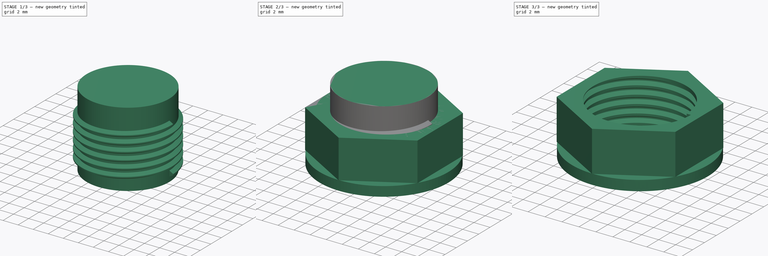
[diagram: build sequence overview — one tinted view per stage of 3, left to right]
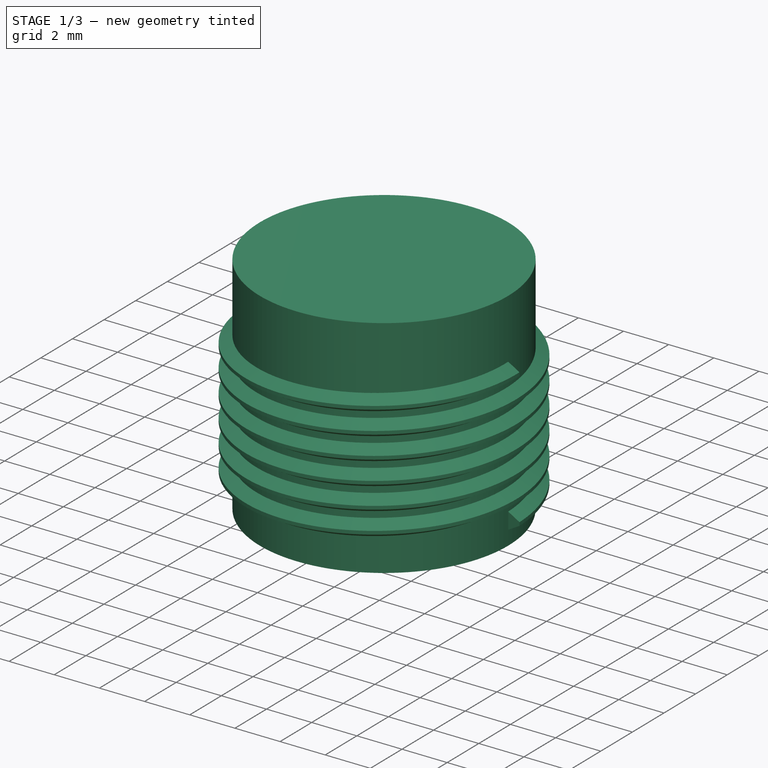
[diagram: stage 1 of 3 — iso view after this stage's code; geometry added in this stage tinted green]
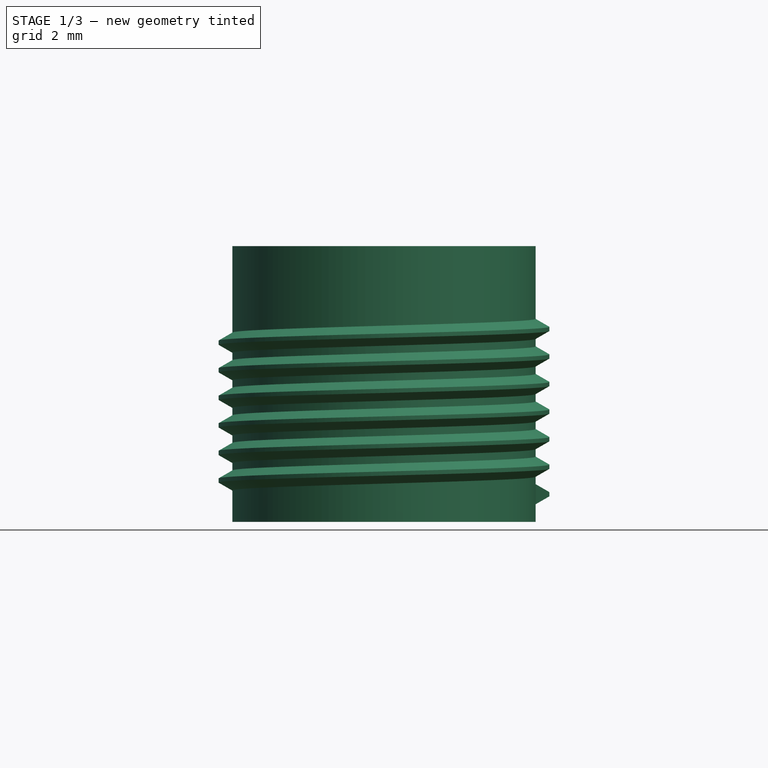
[diagram: stage 1 of 3 — front view after this stage's code; geometry added in this stage tinted green]
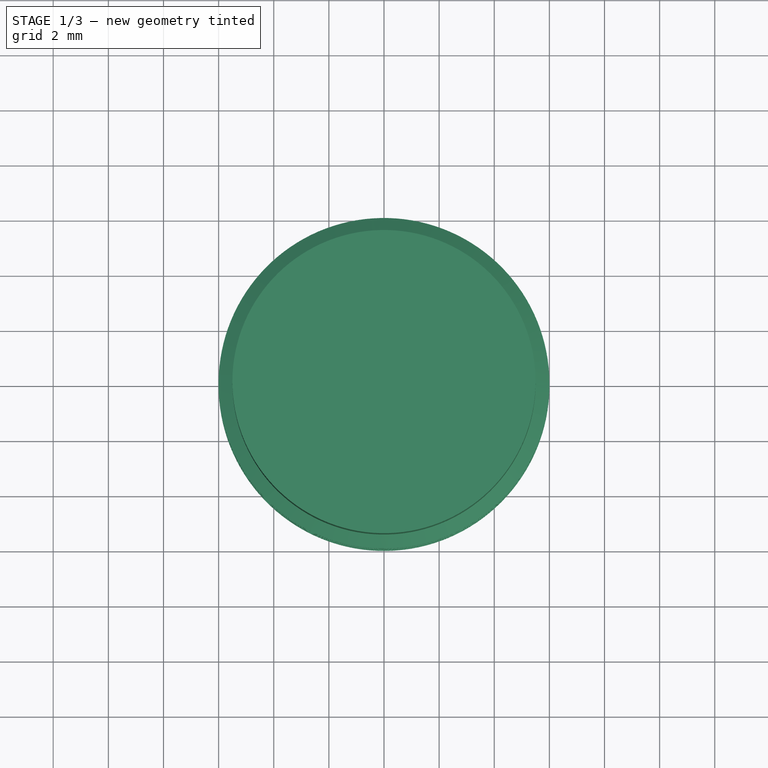
[diagram: stage 1 of 3 — top view after this stage's code; geometry added in this stage tinted green]
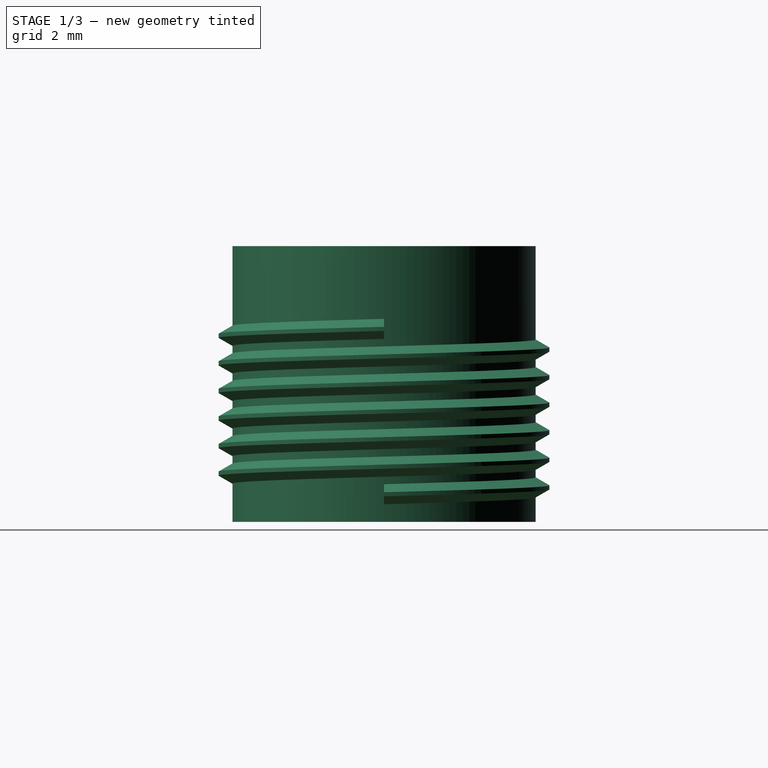
[diagram: stage 1 of 3 — right view after this stage's code; geometry added in this stage tinted green]
FCSTD DOCUMENT  (FreeCAD 0.15R4671 (Git))
Label: HBS_Tuerca
License: All rights reserved
LicenseURL: http://en.wikipedia.org/wiki/All_rights_reserved
objects: Sketcher::SketchObject×3, Drawing::FeatureViewPart×3, Part::MultiFuse×2, PartDesign::Revolution×1, PartDesign::Pad×1, Part::Helix×1, Part::Sweep×1, Part::Cylinder×1, Part::Cut×1, App::FeaturePython×1, App::DocumentObjectGroup×1, Drawing::FeatureViewPython×1, Drawing::FeaturePage×1
note: 13 computed .brp shape members not serialized (recipe doc carries the construction recipe); baked Part::Feature solids carry a one-line shape summary decoded from their .brp

FEATURE [Part::Helix] Helix
  Angle = 0
  Height = 6
  LocalCoord = 0
  Pitch = 1
  Radius = 5.5
  Style = 1
FEATURE [Sketcher::SketchObject] Sketch002
  Placement = pos=(0,0,0) rot=(1,0,0;1.5708rad)
  sketch-geometry (5):
    g0: LineSegment [constr] StartX=6.13 StartY=0 StartZ=0 EndX=5.05 EndY=0.623538 EndZ=0
    g1: LineSegment StartX=6 StartY=0.0750555 StartZ=0 EndX=6 EndY=-0.0750555 EndZ=0
    g2: LineSegment StartX=6 StartY=-0.0750555 StartZ=0 EndX=5.32 EndY=-0.467654 EndZ=0
    g3: LineSegment StartX=5.32 StartY=-0.467654 StartZ=0 EndX=5.32 EndY=0.467654 EndZ=0
    g4: LineSegment StartX=6 StartY=0.0750555 StartZ=0 EndX=5.32 EndY=0.467654 EndZ=0
  constraints (16):
    c: PointOnObject(g0,g-1)
    c: PointOnObject(g1,g0)
    c: Vertical(g1)
    c: Coincident(g1,g2)
    c: Coincident(g2,g3)
    c: PointOnObject(g3,g0)
    c: Vertical(g3)
    c: Symmetric(g1,g1,g-1)
    c: Symmetric(g2,g3,g-1)
    c: DistanceX(g-1,g0) = 6.13
    c: DistanceX(g-1,g1) = 6
    c: DistanceX(g-1,g3) = 5.32
    c: DistanceX(g-1,g0) = 5.05
    c: Angle(g-1,g0) = 2.61799
    c: Coincident(g4,g1)
    c: Coincident(g4,g3)
FEATURE [Part::Sweep] Sweep
  Frenet = true
  Sections = -> [Sketch002]
  Solid = true
  Spine = -> Helix [Edge1,Edge2,Edge3,Edge4,Edge5,Edge6]
  Transition = 1
FEATURE [Part::Cylinder] Cylinder
  Angle = 360
  Height = 10
  Placement = pos=(0,0,-1) rot=(0,0,1;0rad)
  Radius = 5.5
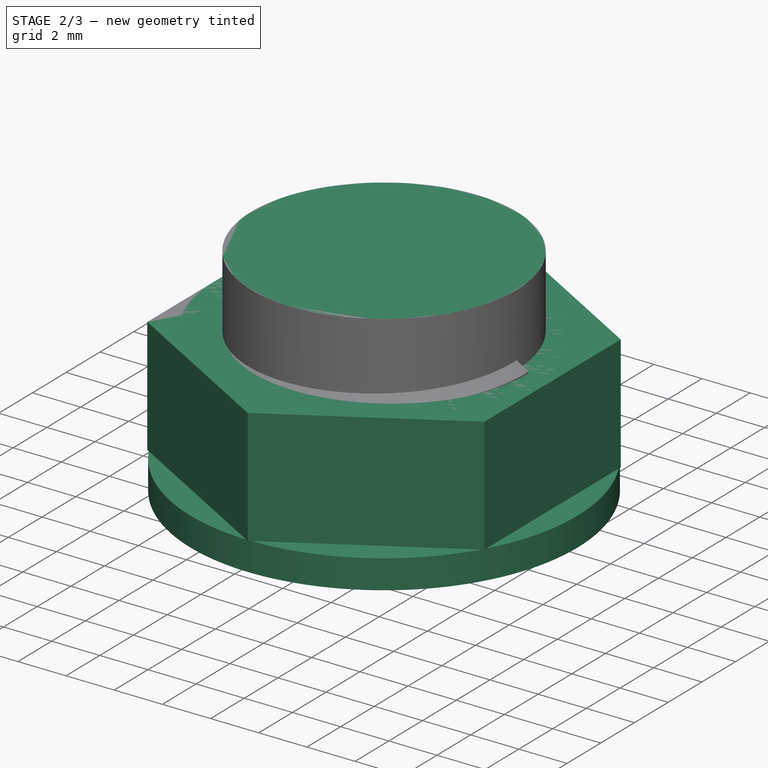
[diagram: stage 2 of 3 — iso view after this stage's code; geometry added in this stage tinted green]
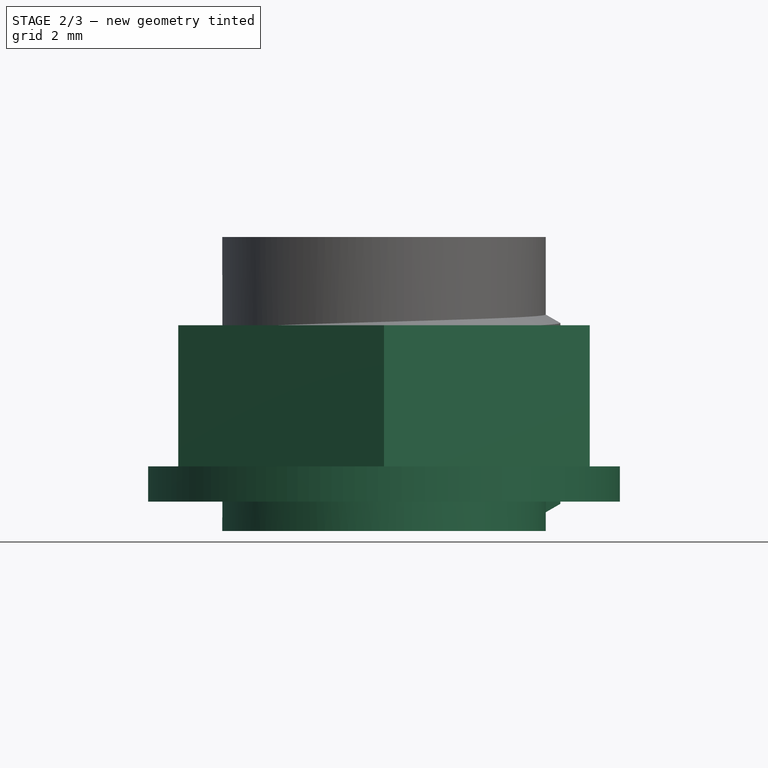
[diagram: stage 2 of 3 — front view after this stage's code; geometry added in this stage tinted green]
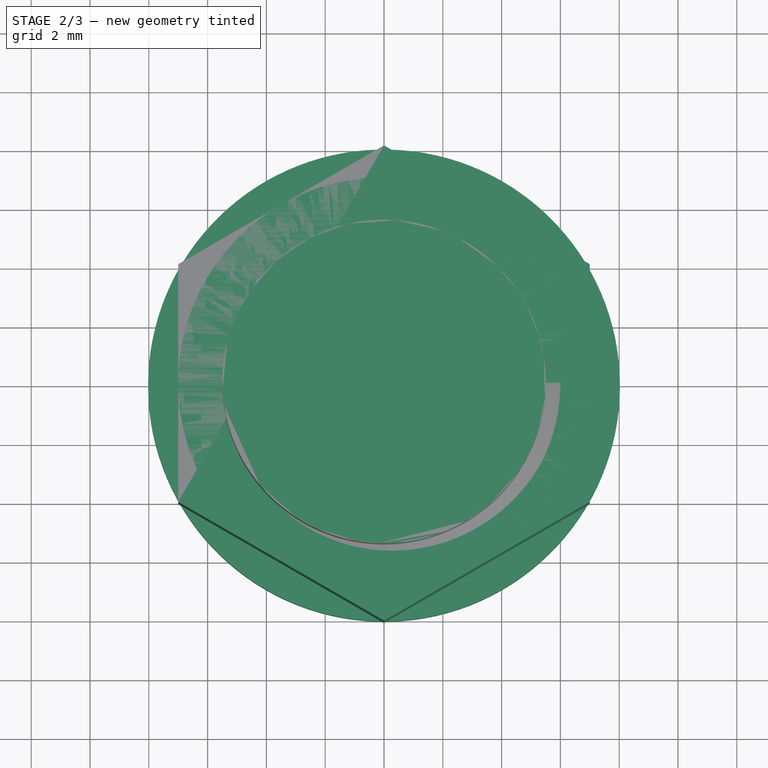
[diagram: stage 2 of 3 — top view after this stage's code; geometry added in this stage tinted green]
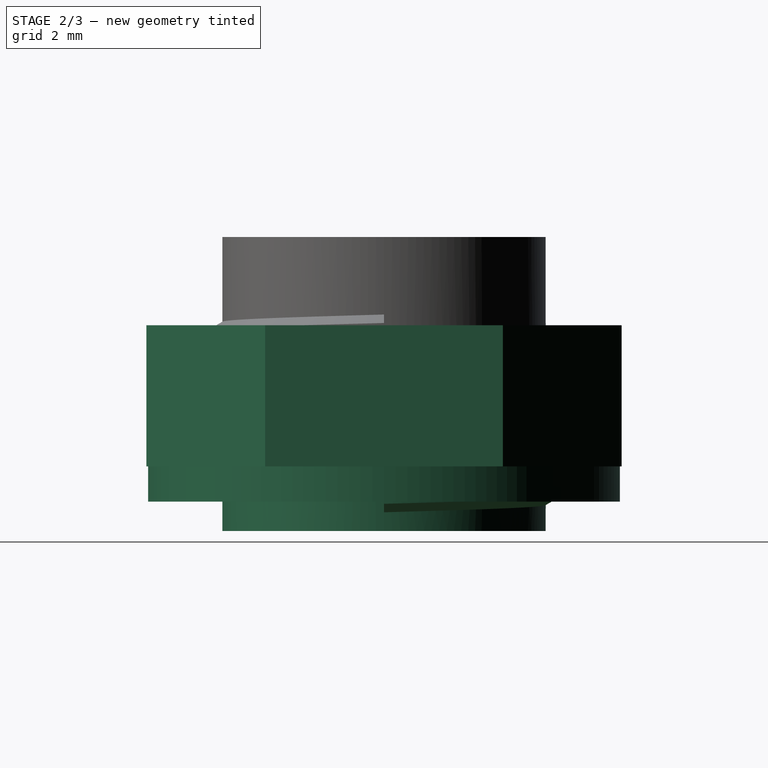
[diagram: stage 2 of 3 — right view after this stage's code; geometry added in this stage tinted green]
FEATURE [Sketcher::SketchObject] Sketch
  Placement = pos=(0,0,0) rot=(1,0,0;1.5708rad)
  sketch-geometry (6):
    g0: LineSegment StartX=7 StartY=3 StartZ=0 EndX=7 EndY=-1.8 EndZ=0
    g1: LineSegment StartX=7 StartY=-1.8 StartZ=0 EndX=8.025 EndY=-1.8 EndZ=0
    g2: LineSegment StartX=8.025 StartY=-1.8 StartZ=0 EndX=8.025 EndY=-3 EndZ=0
    g3: LineSegment StartX=8.025 StartY=-3 StartZ=0 EndX=5.5 EndY=-3 EndZ=0
    g4: LineSegment StartX=7 StartY=3 StartZ=0 EndX=5.5 EndY=3 EndZ=0
    g5: LineSegment StartX=5.5 StartY=3 StartZ=0 EndX=5.5 EndY=-3 EndZ=0
  constraints (18):
    c: Vertical(g0)
    c: Coincident(g0,g1)
    c: Horizontal(g1)
    c: Coincident(g1,g2)
    c: Vertical(g2)
    c: Coincident(g2,g3)
    c: Horizontal(g3)
    c: Coincident(g0,g4)
    c: Horizontal(g4)
    c: Coincident(g4,g5)
    c: Coincident(g5,g3)
    c: Vertical(g5)
    c: Symmetric(g3,g4,g-1)
    c: DistanceX(g-1,g4) = 5.5
    c: DistanceX(g-1,g2) = 8.025
    c: DistanceX(g-1,g0) = 7
    c: DistanceY(g0,g2) = -6
    c: DistanceY(g1,g2) = -1.2
FEATURE [PartDesign::Revolution] Revolution
  Angle = 360
  Axis = (0,0,1)
  Base = (0,0,0)
  Placement = pos=(0,0,0) rot=(1,0,0;1.5708rad)
  ReferenceAxis = -> Sketch [V_Axis]
  Reversed = true
  Sketch = -> Sketch
FEATURE [Sketcher::SketchObject] Sketch001
  Placement = pos=(0,0,3) rot=(0,0,1;0rad)
  sketch-geometry (7):
    g0: Circle [constr] CenterX=0 CenterY=0 CenterZ=0 NormalX=0 NormalY=0 NormalZ=1 Radius=7
    g1: LineSegment StartX=0 StartY=8.0829 StartZ=0 EndX=-7 EndY=4.04145 EndZ=0
    g2: LineSegment StartX=-7 StartY=4.04145 StartZ=0 EndX=-7 EndY=-4.04145 EndZ=0
    g3: LineSegment StartX=-7 StartY=-4.04145 StartZ=0 EndX=0 EndY=-8.0829 EndZ=0
    g4: LineSegment StartX=0 StartY=-8.0829 StartZ=0 EndX=7 EndY=-4.04145 EndZ=0
    g5: LineSegment StartX=7 StartY=-4.04145 StartZ=0 EndX=7 EndY=4.04145 EndZ=0
    g6: LineSegment StartX=7 StartY=4.04145 StartZ=0 EndX=0 EndY=8.0829 EndZ=0
  constraints (17):
    c: Coincident(g0,g-1)
    c: Radius(g0) = 7
    c: PointOnObject(g1,g-2)
    c: Tangent(g1,g0)
    c: Coincident(g2,g1)
    c: Vertical(g2)
    c: Tangent(g2,g0)
    c: Coincident(g3,g2)
    c: Symmetric(g3,g1,g-1)
    c: Symmetric(g2,g1,g-1)
    c: Coincident(g4,g3)
    c: Coincident(g5,g4)
    c: Coincident(g6,g5)
    c: Coincident(g6,g1)
    c: Symmetric(g1,g5,g-2)
    c: Symmetric(g2,g4,g-2)
    c: Angle(g1,g-2) = 1.0472
FEATURE [PartDesign::Pad] Pad
  Length = 4.8
  Length2 = 100
  Placement = pos=(0,0,3) rot=(0,0,1;0rad)
  Reversed = true
  Sketch = -> Sketch001
  Type = 0
FEATURE [Part::MultiFuse] Fusion001
  Placement = pos=(0,0,-3) rot=(0,0,1;0rad)
  Shapes = -> [Sweep,Cylinder]
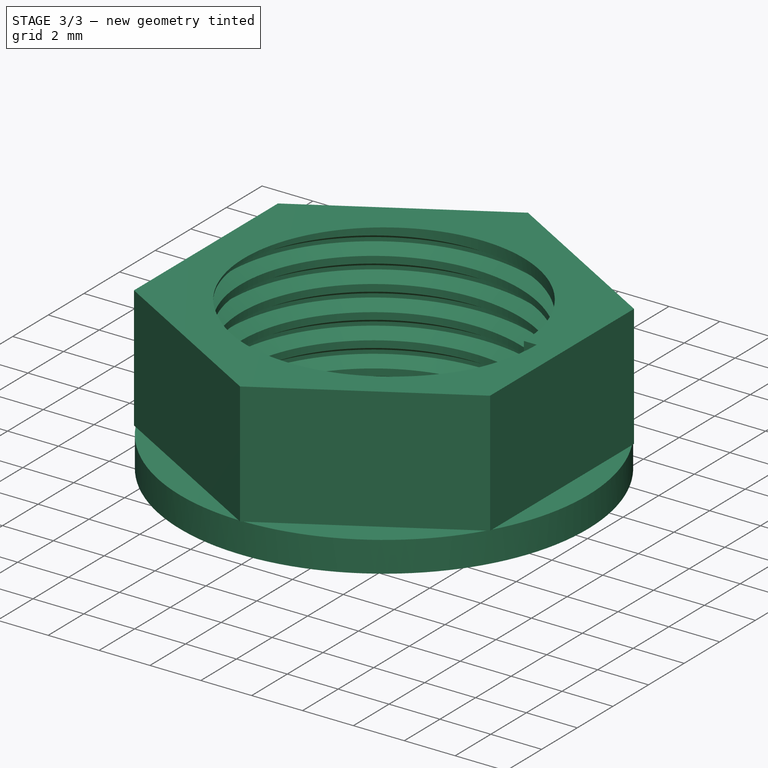
[diagram: stage 3 of 3 — iso view after this stage's code; geometry added in this stage tinted green]
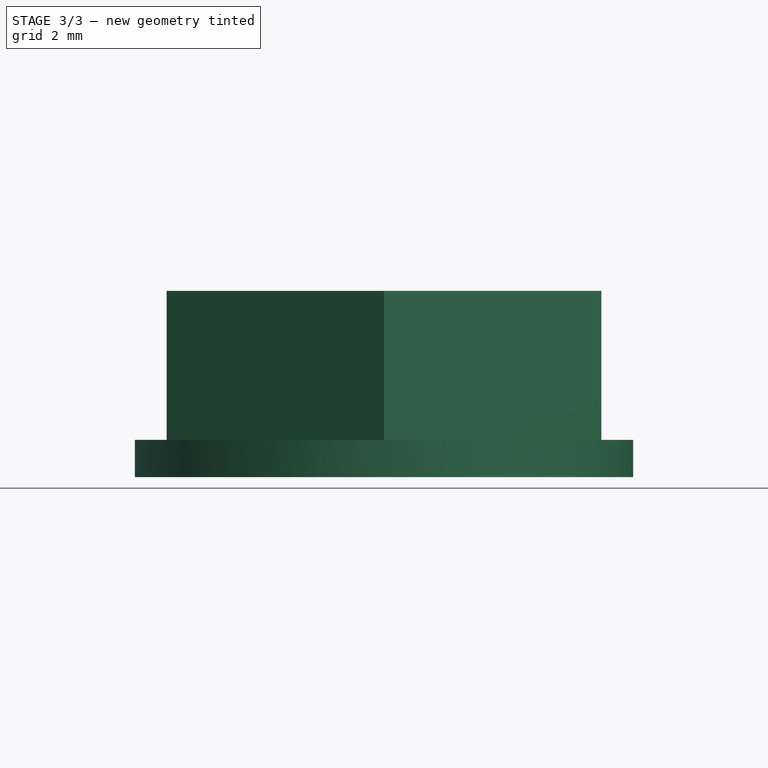
[diagram: stage 3 of 3 — front view after this stage's code; geometry added in this stage tinted green]
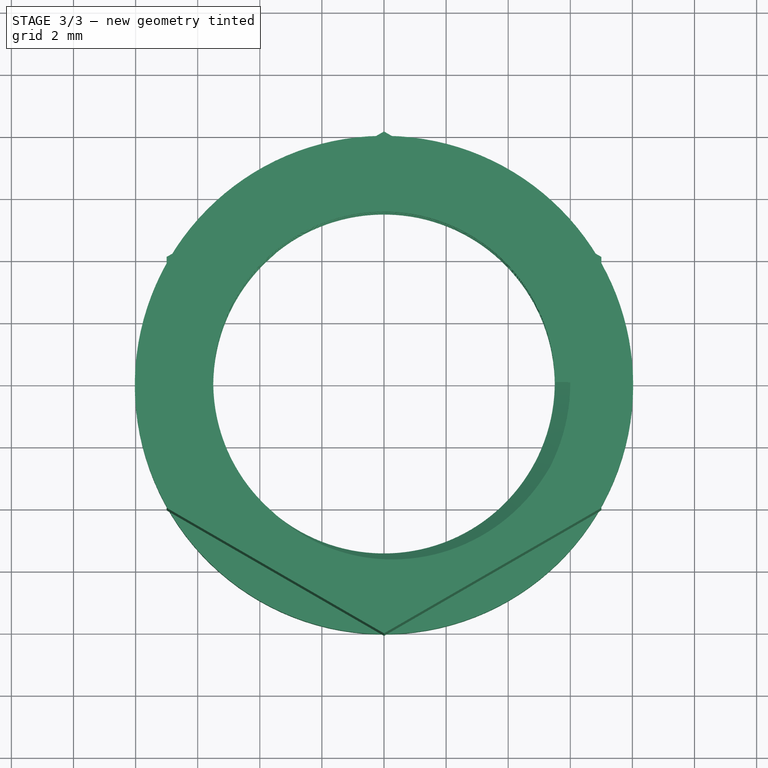
[diagram: stage 3 of 3 — top view after this stage's code; geometry added in this stage tinted green]
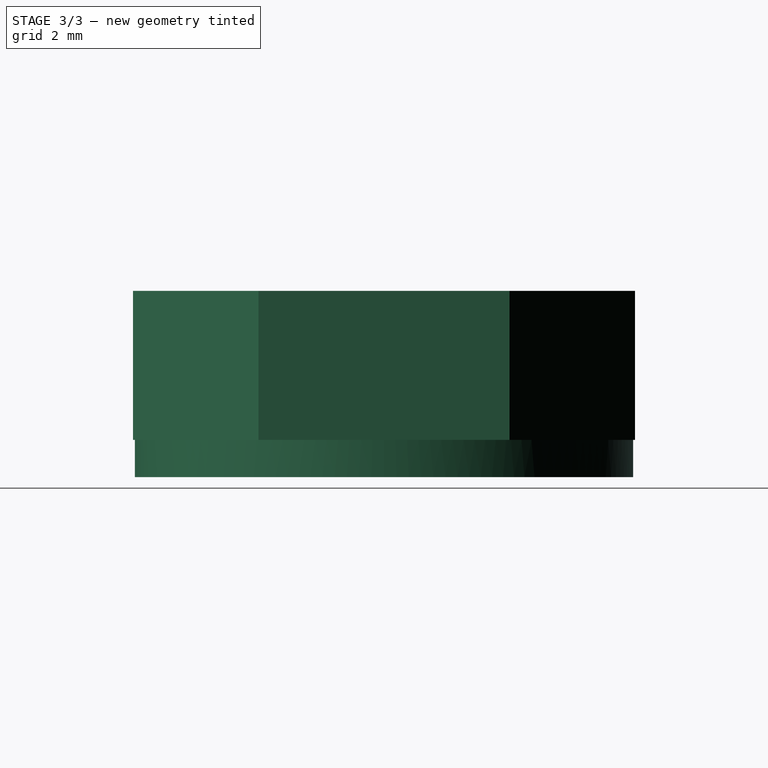
[diagram: stage 3 of 3 — right view after this stage's code; geometry added in this stage tinted green]
FEATURE [Part::MultiFuse] Fusion
  Shapes = -> [Revolution,Pad]
FEATURE [Part::Cut] Cut  label="Tuerca"
  Base = -> Fusion
  Tool = -> Fusion001
FEATURE [App::FeaturePython] Dimension  # Draft dimension (typed FeaturePython)
  Dimline = (-0.0997315,-11.7933,3)
  Direction = (0,0,0)
  Distance = 14
  End = (7,0,3)
  Normal = (0,0,-1)
  Start = (-7,-7.1594e-08,3)
FEATURE [App::DocumentObjectGroup] Group  label="Cota_xy"
  Group = -> [Dimension]
FEATURE [Drawing::FeatureViewPart] Ortho  label="Ortho_0_0"
  Direction = (0,0,1)
  HiddenWidth = 0.15
  LineWidth = 0.5
  Rotation = 0
  Scale = 4
  ShowHiddenLines = false
  ShowSmoothLines = false
  Source = -> Cut
  Tolerance = 0.05
  ViewResult = <blob: 5538 chars omitted>
  Visible = true
  X = 195.3
  Y = 64.1105
FEATURE [Drawing::FeatureViewPart] Ortho001  label="Ortho_0_-1"
  Direction = (0,-1,0)
  HiddenWidth = 0.15
  LineWidth = 0.5
  Rotation = 90
  Scale = 4
  ShowHiddenLines = false
  ShowSmoothLines = false
  Source = -> Cut
  Tolerance = 0.05
  ViewResult = <blob: 2062 chars omitted>
  Visible = true
  X = 195.3
  Y = 130.221
FEATURE [Drawing::FeatureViewPart] Ortho002  label="Ortho_-1_-1"
  Direction = (-0.57735,-0.57735,0.57735)
  HiddenWidth = 0.15
  LineWidth = 0.5
  Rotation = -60
  Scale = 4
  ShowHiddenLines = false
  ShowSmoothLines = false
  Source = -> Cut
  Tolerance = 0.05
  ViewResult = <blob: 8118 chars omitted>
  Visible = true
  X = 91.6
  Y = 130.221
FEATURE [Drawing::FeatureViewPython] ViewGroup  # drawing view (typed FeaturePython)
  Direction = (0,0,0)
  FillStyle = 0
  FontSize = 12
  LineStyle = 0
  LineWidth = 0.35
  Rotation = 0
  Scale = 4
  Source = -> Group
  ViewResult = <g id="ViewGroup" transform="rotate(0.0,195.3,64.11) translate(195.3,64.11) scale(4.0,-4.0)"><path d="M -7.0 -7.15935427454e-08 L -6.99999993969 -11.793309247 L 7.00000006031 -11.7933091754 L 7.0 1.99840144433e-15" fill="none" stroke="#0000ff" stroke-width="0.0875 px" style="stroke-width:0.0875;stroke-miterlimit:4;stroke-dasharray:none" freecad:basepoint1="-7.0 -7.15935427454e-08" freecad:basepoint2="7.0 1.99840144433e-15" freecad:dimpoint="-6.99999993969 -11.793309247"/>\n<path transform="rotate(0.0,-6.99999993969,-11.793309247) translate(-6.99999993969,-11.793309247) scale(0.666666666667,0.666666666667)" freecad:skip="1" fill="#0000ff" stroke="none" style="stroke-miterlimit:4;stroke-dasharray:none" d="M 0 0 L 4 1 L 4 -1 Z"/>\n<path transform="rotate(180.0,7.00000006031,-11.7933091754) translate(7.00000006031,-11.7933091754) scale(0.666666666667,0.666666666667)" freecad:skip="1" fill="#0000ff" stroke="none" style="stroke-miterlimit:4;stroke-dasharray:none" d="M 0 0 L 4 1 L 4 -1 Z"/>\n<text fill="#0000ff" font-size="1.5" style="text-anchor:middle;text-align:center;font-family:" transform="rotate(0.0,6.54227398605e-08,-12.7933092112) translate(6.54227398605e-08,-12.7933092112) scale(1,-1) " freecad:skip="1">\n14 </text>\n</g>
  Visible = true
  X = 195.3
  Y = 64.11
FEATURE [Drawing::FeaturePage] Page
  EditableTexts = Marcelo | Marcelo | VioMar | type | Tuerca  | 0001 | 06-02-2016
  Group = -> [Ortho,Ortho001,Ortho002,ViewGroup]
  Template = C:/Program Files/FreeCAD 0.15/data/Mod/Drawing/Templates/A4_Landscape_ISO7200.svg
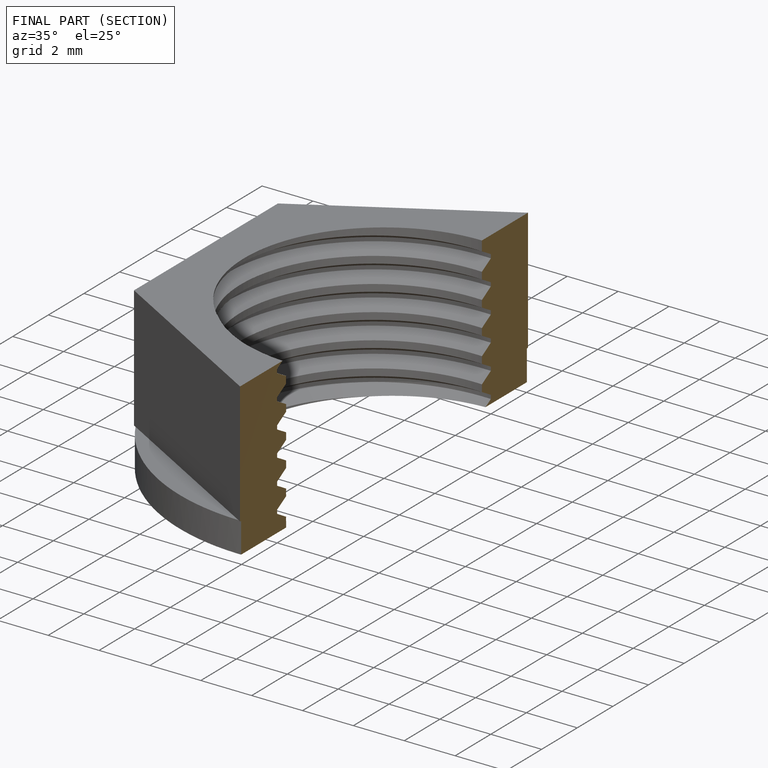
[diagram: finished part — half-section view (interior)]
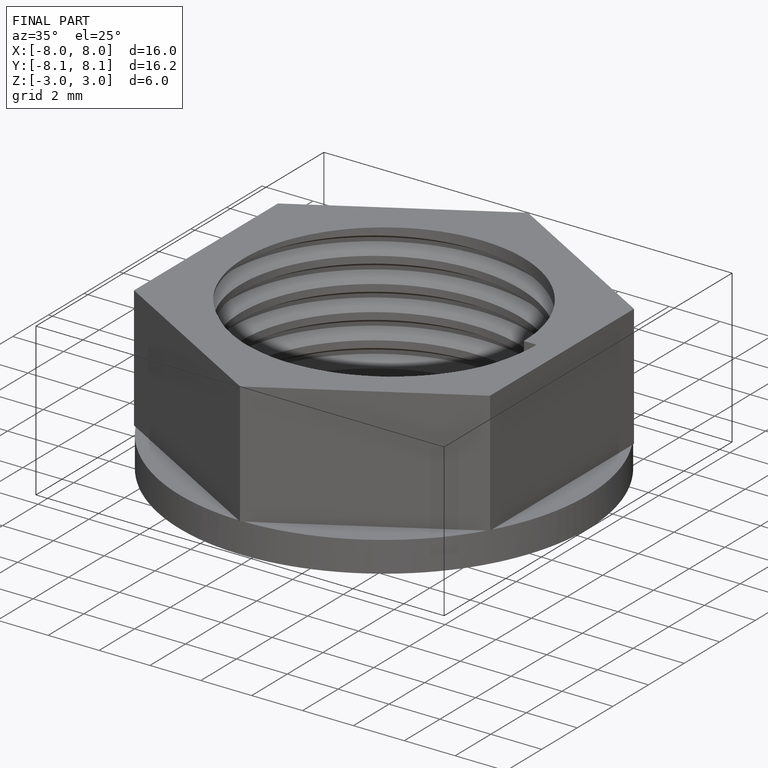
[diagram: finished part — iso view with bounding-box wireframe]
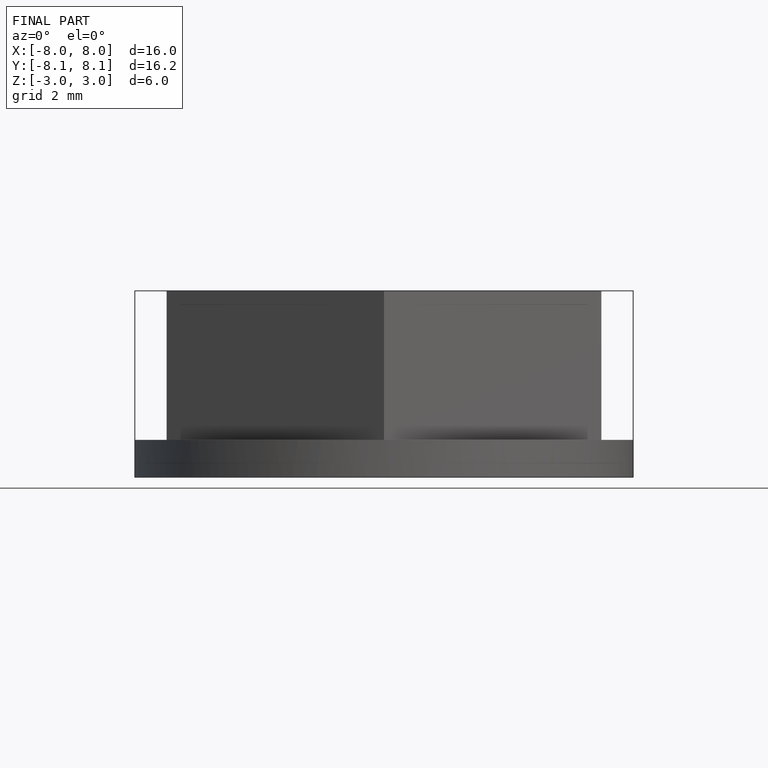
[diagram: finished part — front view with bounding-box wireframe]
